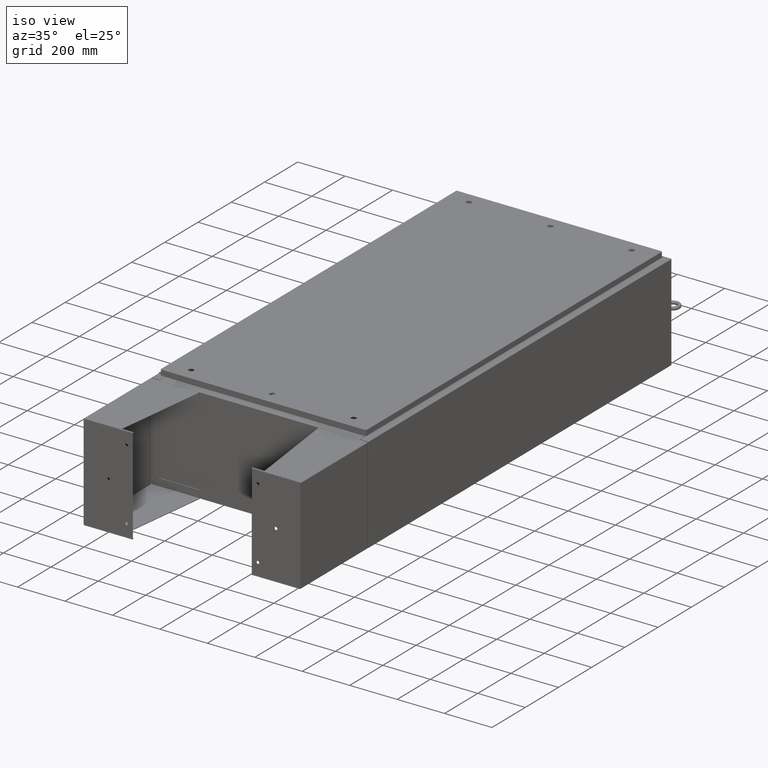
[diagram: clean part render]
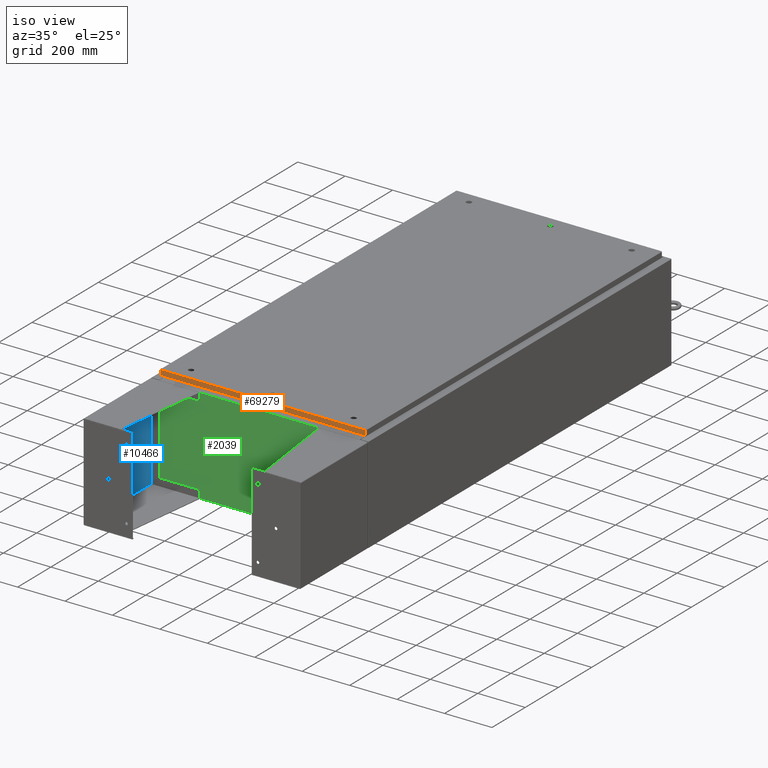
[diagram: same view with three faces highlighted in distinct colors, each labeled with its STEP entity id]
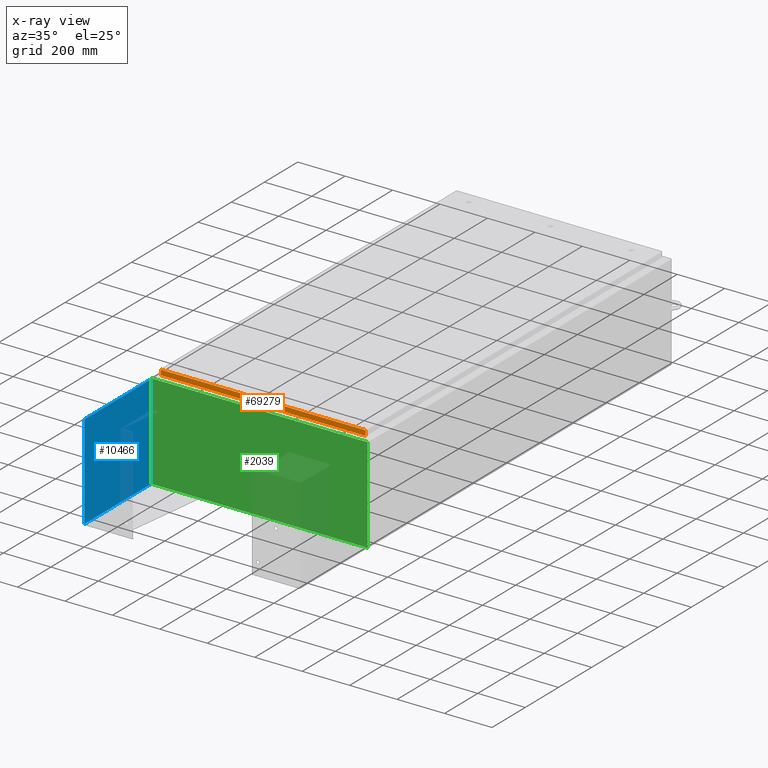
[diagram: x-ray of the same camera — body ghosted, the three highlighted faces saturated]
A machine part, iso view with three faces highlighted in distinct colors.
The next image is the same camera in x-ray (body ghosted, the three faces saturated) — at least one of them is partly hidden behind the body in this view.
Their STEP definitions:

[orange] entity #69279 — the highlighted planar face has unit normal (-0, 1, -0).
#1310 = CARTESIAN_POINT ( 'NONE',  ( 2.274616040905385600E-029, -35.09400000000000800, 1.780063033239673800E-013 ) ) ;
#2481 = CARTESIAN_POINT ( 'NONE',  ( 16.98915786437627100, -35.09400000000001500, -0.9376999999999997600 ) ) ;
#4017 = ORIENTED_EDGE ( 'NONE', *, *, #9594, .F. ) ;
#6320 = VECTOR ( 'NONE', #20692, 39.37007874015748100 ) ;
#9432 = VERTEX_POINT ( 'NONE', #15047 ) ;
#9594 = EDGE_CURVE ( 'NONE', #44220, #39410, #20916, .T. ) ;
#10006 = VERTEX_POINT ( 'NONE', #14444 ) ;
#14444 = CARTESIAN_POINT ( 'NONE',  ( -16.98915786437627100, -35.09400000000001500, -0.9376999999999954300 ) ) ;
#15047 = CARTESIAN_POINT ( 'NONE',  ( -16.98915786437627100, -35.09400000000000800, -0.08769999999999550400 ) ) ;
#15441 = ORIENTED_EDGE ( 'NONE', *, *, #66146, .F. ) ;
#15627 = DIRECTION ( 'NONE',  ( 0.0000000000000000000, -5.064839849203732200E-015, -1.000000000000000000 ) ) ;
#19704 = DIRECTION ( 'NONE',  ( -1.000000000000000000, -8.758115402030106700E-047, 1.279703943630056600E-016 ) ) ;
#19720 = VECTOR ( 'NONE', #63162, 39.37007874015748100 ) ;
#20692 = DIRECTION ( 'NONE',  ( -0.0000000000000000000, -5.064839849203732200E-015, -1.000000000000000000 ) ) ;
#20916 = LINE ( 'NONE', #40171, #6320 ) ;
#23407 = PLANE ( 'NONE',  #33731 ) ;
#25024 = CARTESIAN_POINT ( 'NONE',  ( 17.07799999999999900, -35.09400000000000800, -0.08769999999999550400 ) ) ;
#26471 = FACE_OUTER_BOUND ( 'NONE', #65308, .T. ) ;
#28904 = DIRECTION ( 'NONE',  ( -6.481495528880677800E-031, 1.000000000000000000, -5.064839849203732200E-015 ) ) ;
#29619 = CARTESIAN_POINT ( 'NONE',  ( 16.98915786437627100, -35.09400000000000800, -0.08769999999999550400 ) ) ;
#33731 = AXIS2_PLACEMENT_3D ( 'NONE', #1310, #28904, #67042 ) ;
#36074 = LINE ( 'NONE', #52332, #50514 ) ;
#37832 = ORIENTED_EDGE ( 'NONE', *, *, #42205, .T. ) ;
#39410 = VERTEX_POINT ( 'NONE', #2481 ) ;
#40171 = CARTESIAN_POINT ( 'NONE',  ( 16.98915786437627100, -35.09400000000000800, -0.07469999999999962800 ) ) ;
#40696 = ORIENTED_EDGE ( 'NONE', *, *, #46473, .F. ) ;
#42205 = EDGE_CURVE ( 'NONE', #9432, #10006, #53163, .T. ) ;
#44220 = VERTEX_POINT ( 'NONE', #29619 ) ;
#45290 = LINE ( 'NONE', #25024, #19720 ) ;
#46473 = EDGE_CURVE ( 'NONE', #39410, #10006, #36074, .T. ) ;
#50514 = VECTOR ( 'NONE', #19704, 39.37007874015748100 ) ;
#52332 = CARTESIAN_POINT ( 'NONE',  ( 17.07799999999999900, -35.09400000000001500, -0.9376999999999997600 ) ) ;
#53163 = LINE ( 'NONE', #64506, #64313 ) ;
#63162 = DIRECTION ( 'NONE',  ( 1.000000000000000000, 6.481495528880679500E-031, -3.349804276043092600E-045 ) ) ;
#64313 = VECTOR ( 'NONE', #15627, 39.37007874015748100 ) ;
#64506 = CARTESIAN_POINT ( 'NONE',  ( -16.98915786437627100, -35.09400000000000800, 1.780063033239673800E-013 ) ) ;
#65308 = EDGE_LOOP ( 'NONE', ( #15441, #37832, #40696, #4017 ) ) ;
#66146 = EDGE_CURVE ( 'NONE', #9432, #44220, #45290, .T. ) ;
#67042 = DIRECTION ( 'NONE',  ( 0.0000000000000000000, 5.064839849203732200E-015, 1.000000000000000000 ) ) ;
#69279 = ADVANCED_FACE ( 'NONE', ( #26471 ), #23407, .F. ) ;

[blue] entity #10466 — the highlighted planar face has unit normal (-1, 0, -0).
#4279 = LINE ( 'NONE', #26074, #42755 ) ;
#4929 = EDGE_CURVE ( 'NONE', #9536, #30544, #65235, .T. ) ;
#9300 = CARTESIAN_POINT ( 'NONE',  ( 8.000000000000001800, 8.000000000000001800, 0.0000000000000000000 ) ) ;
#9536 = VERTEX_POINT ( 'NONE', #29211 ) ;
#10466 = ADVANCED_FACE ( 'NONE', ( #53121 ), #41527, .F. ) ;
#12388 = EDGE_CURVE ( 'NONE', #21509, #30544, #69953, .T. ) ;
#15261 = DIRECTION ( 'NONE',  ( 0.0000000000000000000, 0.0000000000000000000, -1.000000000000000000 ) ) ;
#15830 = CARTESIAN_POINT ( 'NONE',  ( -7.999999999999997300, -7.999999999999999100, 0.0000000000000000000 ) ) ;
#18189 = DIRECTION ( 'NONE',  ( -1.000000000000000000, 0.0000000000000000000, -0.0000000000000000000 ) ) ;
#19732 = ORIENTED_EDGE ( 'NONE', *, *, #21017, .F. ) ;
#21017 = EDGE_CURVE ( 'NONE', #60851, #21509, #4279, .T. ) ;
#21143 = ORIENTED_EDGE ( 'NONE', *, *, #12388, .F. ) ;
#21509 = VERTEX_POINT ( 'NONE', #48182 ) ;
#22811 = ORIENTED_EDGE ( 'NONE', *, *, #4929, .T. ) ;
#24205 = DIRECTION ( 'NONE',  ( 1.000000000000000000, 0.0000000000000000000, 0.0000000000000000000 ) ) ;
#24743 = LINE ( 'NONE', #62252, #64849 ) ;
#26074 = CARTESIAN_POINT ( 'NONE',  ( -7.856999999999996700, 7.857000000000001100, 1.365923996832131600E-016 ) ) ;
#29211 = CARTESIAN_POINT ( 'NONE',  ( -7.856999999999997500, -8.000000000000000000, 1.365923996832131600E-016 ) ) ;
#30472 = EDGE_LOOP ( 'NONE', ( #19732, #57736, #22811, #21143 ) ) ;
#30544 = VERTEX_POINT ( 'NONE', #50576 ) ;
#40973 = VECTOR ( 'NONE', #41711, 39.37007874015748100 ) ;
#41527 = PLANE ( 'NONE',  #41916 ) ;
#41711 = DIRECTION ( 'NONE',  ( -0.0000000000000000000, -1.000000000000000000, -0.0000000000000000000 ) ) ;
#41916 = AXIS2_PLACEMENT_3D ( 'NONE', #9300, #15261, #18189 ) ;
#42755 = VECTOR ( 'NONE', #47193, 39.37007874015748100 ) ;
#47193 = DIRECTION ( 'NONE',  ( 1.000000000000000000, 0.0000000000000000000, 0.0000000000000000000 ) ) ;
#48182 = CARTESIAN_POINT ( 'NONE',  ( 7.857000000000001100, 7.857000000000001100, 1.365923996832131600E-016 ) ) ;
#50576 = CARTESIAN_POINT ( 'NONE',  ( 7.857000000000001100, -7.999999999999997300, 1.365923996832131600E-016 ) ) ;
#51137 = EDGE_CURVE ( 'NONE', #9536, #60851, #24743, .T. ) ;
#53121 = FACE_OUTER_BOUND ( 'NONE', #30472, .T. ) ;
#57736 = ORIENTED_EDGE ( 'NONE', *, *, #51137, .F. ) ;
#60727 = CARTESIAN_POINT ( 'NONE',  ( -7.856999999999996700, 7.857000000000001100, 1.365923996832131600E-016 ) ) ;
#60851 = VERTEX_POINT ( 'NONE', #60727 ) ;
#61821 = VECTOR ( 'NONE', #24205, 39.37007874015748100 ) ;
#62252 = CARTESIAN_POINT ( 'NONE',  ( -7.856999999999997500, -7.999999999999999100, 1.365923996832131600E-016 ) ) ;
#64849 = VECTOR ( 'NONE', #67766, 39.37007874015748100 ) ;
#65203 = CARTESIAN_POINT ( 'NONE',  ( 7.857000000000001100, 8.000000000000001800, 1.365923996832131600E-016 ) ) ;
#65235 = LINE ( 'NONE', #15830, #61821 ) ;
#67766 = DIRECTION ( 'NONE',  ( -0.0000000000000000000, 1.000000000000000000, -0.0000000000000000000 ) ) ;
#69953 = LINE ( 'NONE', #65203, #40973 ) ;

[green] entity #2039 — the highlighted planar face has unit normal (-0, 1, -0).
#357 = AXIS2_PLACEMENT_3D ( 'NONE', #69557, #36914, #4103 ) ;
#923 = CIRCLE ( 'NONE', #34056, 0.01867499999999949400 ) ;
#1770 = VERTEX_POINT ( 'NONE', #59631 ) ;
#2039 = ADVANCED_FACE ( 'NONE', ( #43657 ), #55657, .F. ) ;
#2055 = LINE ( 'NONE', #42984, #13289 ) ;
#3124 = CARTESIAN_POINT ( 'NONE',  ( -17.92530000000000000, 0.0000000000000000000, -7.925299999999997300 ) ) ;
#3975 = CARTESIAN_POINT ( 'NONE',  ( 16.65587500000000200, 0.0000000000000000000, 7.874950000000001900 ) ) ;
#4103 = DIRECTION ( 'NONE',  ( 0.0000000000000000000, 0.0000000000000000000, -1.000000000000000000 ) ) ;
#4907 = CARTESIAN_POINT ( 'NONE',  ( 17.92530000000000000, 0.0000000000000000000, 7.925300000000000000 ) ) ;
#6369 = ORIENTED_EDGE ( 'NONE', *, *, #70181, .F. ) ;
#6528 = CARTESIAN_POINT ( 'NONE',  ( 16.63720000000000400, 0.0000000000000000000, 7.874950000000001900 ) ) ;
#7006 = EDGE_CURVE ( 'NONE', #1770, #25965, #923, .T. ) ;
#7124 = VECTOR ( 'NONE', #10097, 39.37007874015748100 ) ;
#7480 = CARTESIAN_POINT ( 'NONE',  ( -16.63720000000000400, -0.0000000000000000000, 7.874950000000001900 ) ) ;
#7501 = CIRCLE ( 'NONE', #357, 0.01867499999999949400 ) ;
#7662 = EDGE_CURVE ( 'NONE', #9552, #10494, #70906, .T. ) ;
#9552 = VERTEX_POINT ( 'NONE', #3124 ) ;
#10063 = VECTOR ( 'NONE', #69550, 39.37007874015748100 ) ;
#10097 = DIRECTION ( 'NONE',  ( 0.0000000000000000000, 0.0000000000000000000, -1.000000000000000000 ) ) ;
#10271 = DIRECTION ( 'NONE',  ( 0.0000000000000000000, 0.0000000000000000000, -1.000000000000000000 ) ) ;
#10303 = VERTEX_POINT ( 'NONE', #62790 ) ;
#10494 = VERTEX_POINT ( 'NONE', #14097 ) ;
#11839 = VECTOR ( 'NONE', #57252, 39.37007874015748100 ) ;
#12726 = VECTOR ( 'NONE', #52649, 39.37007874015748100 ) ;
#12915 = VECTOR ( 'NONE', #68823, 39.37007874015748100 ) ;
#13289 = VECTOR ( 'NONE', #10271, 39.37007874015748100 ) ;
#14045 = ORIENTED_EDGE ( 'NONE', *, *, #56385, .F. ) ;
#14097 = CARTESIAN_POINT ( 'NONE',  ( -17.92530000000000000, 0.0000000000000000000, 7.925300000000001800 ) ) ;
#14448 = VERTEX_POINT ( 'NONE', #54485 ) ;
#14847 = VERTEX_POINT ( 'NONE', #7480 ) ;
#16184 = CARTESIAN_POINT ( 'NONE',  ( -16.67455000000000000, 0.0000000000000000000, 7.874950000000001900 ) ) ;
#16363 = CARTESIAN_POINT ( 'NONE',  ( -16.67455000000000000, 0.0000000000000000000, 7.925300000000001800 ) ) ;
#16424 = VECTOR ( 'NONE', #33766, 39.37007874015748100 ) ;
#17778 = EDGE_CURVE ( 'NONE', #21878, #28549, #2055, .T. ) ;
#19569 = EDGE_CURVE ( 'NONE', #28549, #9552, #61665, .T. ) ;
#21702 = LINE ( 'NONE', #48250, #7124 ) ;
#21878 = VERTEX_POINT ( 'NONE', #4907 ) ;
#23083 = DIRECTION ( 'NONE',  ( 1.000000000000000000, 0.0000000000000000000, -6.096072018129154100E-017 ) ) ;
#23731 = ORIENTED_EDGE ( 'NONE', *, *, #7662, .T. ) ;
#23777 = EDGE_CURVE ( 'NONE', #24268, #21878, #37885, .T. ) ;
#24268 = VERTEX_POINT ( 'NONE', #36154 ) ;
#25164 = DIRECTION ( 'NONE',  ( -8.681145560800387200E-014, 0.0000000000000000000, -1.000000000000000000 ) ) ;
#25320 = DIRECTION ( 'NONE',  ( 0.0000000000000000000, -0.0000000000000000000, -1.000000000000000000 ) ) ;
#25476 = ORIENTED_EDGE ( 'NONE', *, *, #35764, .F. ) ;
#25524 = CARTESIAN_POINT ( 'NONE',  ( -16.67455000000000000, -0.0000000000000000000, 0.0000000000000000000 ) ) ;
#25965 = VERTEX_POINT ( 'NONE', #6528 ) ;
#26321 = ORIENTED_EDGE ( 'NONE', *, *, #52775, .T. ) ;
#27010 = EDGE_LOOP ( 'NONE', ( #14045, #57755, #36631, #37741, #6369, #48565, #25476, #27924, #66762, #67677, #23731, #26321 ) ) ;
#27507 = EDGE_CURVE ( 'NONE', #14847, #51488, #7501, .T. ) ;
#27633 = LINE ( 'NONE', #51567, #54843 ) ;
#27924 = ORIENTED_EDGE ( 'NONE', *, *, #23777, .T. ) ;
#28549 = VERTEX_POINT ( 'NONE', #45784 ) ;
#33766 = DIRECTION ( 'NONE',  ( -1.000000000000000000, -0.0000000000000000000, -0.0000000000000000000 ) ) ;
#34056 = AXIS2_PLACEMENT_3D ( 'NONE', #3975, #37163, #63127 ) ;
#35253 = VECTOR ( 'NONE', #25164, 39.37007874015748100 ) ;
#35666 = CARTESIAN_POINT ( 'NONE',  ( 16.63720000000000400, 0.0000000000000000000, 0.0000000000000000000 ) ) ;
#35764 = EDGE_CURVE ( 'NONE', #24268, #1770, #49659, .T. ) ;
#35903 = DIRECTION ( 'NONE',  ( 0.0000000000000000000, -1.000000000000000000, 0.0000000000000000000 ) ) ;
#36154 = CARTESIAN_POINT ( 'NONE',  ( 16.67455000000000700, 0.0000000000000000000, 7.925300000000000000 ) ) ;
#36631 = ORIENTED_EDGE ( 'NONE', *, *, #55310, .F. ) ;
#36914 = DIRECTION ( 'NONE',  ( -0.0000000000000000000, 1.000000000000000000, -0.0000000000000000000 ) ) ;
#37163 = DIRECTION ( 'NONE',  ( -0.0000000000000000000, 1.000000000000000000, -0.0000000000000000000 ) ) ;
#37450 = LINE ( 'NONE', #58516, #10063 ) ;
#37741 = ORIENTED_EDGE ( 'NONE', *, *, #64819, .T. ) ;
#37885 = LINE ( 'NONE', #50652, #50588 ) ;
#42984 = CARTESIAN_POINT ( 'NONE',  ( 17.92530000000000000, 0.0000000000000000000, 7.925300000000000000 ) ) ;
#43642 = CARTESIAN_POINT ( 'NONE',  ( -17.92530000000000000, 0.0000000000000000000, 7.925300000000001800 ) ) ;
#43657 = FACE_OUTER_BOUND ( 'NONE', #27010, .T. ) ;
#45784 = CARTESIAN_POINT ( 'NONE',  ( 17.92530000000000000, 0.0000000000000000000, -7.925299999999997300 ) ) ;
#46816 = CARTESIAN_POINT ( 'NONE',  ( 16.67454999999931800, -0.0000000000000000000, -1.447541957108381700E-012 ) ) ;
#47279 = CARTESIAN_POINT ( 'NONE',  ( 0.0000000000000000000, 0.0000000000000000000, 0.0000000000000000000 ) ) ;
#48250 = CARTESIAN_POINT ( 'NONE',  ( -16.63720000000000400, -0.0000000000000000000, 0.0000000000000000000 ) ) ;
#48565 = ORIENTED_EDGE ( 'NONE', *, *, #7006, .F. ) ;
#49659 = LINE ( 'NONE', #46816, #35253 ) ;
#50328 = CARTESIAN_POINT ( 'NONE',  ( -17.92530000000000000, 0.0000000000000000000, -7.925299999999997300 ) ) ;
#50588 = VECTOR ( 'NONE', #23083, 39.37007874015748100 ) ;
#50652 = CARTESIAN_POINT ( 'NONE',  ( -17.92530000000000000, 0.0000000000000000000, 7.925300000000001800 ) ) ;
#51488 = VERTEX_POINT ( 'NONE', #16184 ) ;
#51567 = CARTESIAN_POINT ( 'NONE',  ( -16.63720000000000400, -2.356218894535426900E-015, 7.912300000000008100 ) ) ;
#52649 = DIRECTION ( 'NONE',  ( 0.0000000000000000000, 0.0000000000000000000, 1.000000000000000000 ) ) ;
#52775 = EDGE_CURVE ( 'NONE', #10494, #52890, #37450, .T. ) ;
#52890 = VERTEX_POINT ( 'NONE', #16363 ) ;
#53583 = LINE ( 'NONE', #35666, #11839 ) ;
#54485 = CARTESIAN_POINT ( 'NONE',  ( -16.63720000000000400, -2.356218894535426900E-015, 7.912300000000008100 ) ) ;
#54843 = VECTOR ( 'NONE', #57036, 39.37007874015748100 ) ;
#55133 = AXIS2_PLACEMENT_3D ( 'NONE', #47279, #35903, #25320 ) ;
#55310 = EDGE_CURVE ( 'NONE', #14448, #14847, #21702, .T. ) ;
#55657 = PLANE ( 'NONE',  #55133 ) ;
#56167 = LINE ( 'NONE', #25524, #12726 ) ;
#56385 = EDGE_CURVE ( 'NONE', #51488, #52890, #56167, .T. ) ;
#57036 = DIRECTION ( 'NONE',  ( 1.000000000000000000, 0.0000000000000000000, 0.0000000000000000000 ) ) ;
#57252 = DIRECTION ( 'NONE',  ( 0.0000000000000000000, 0.0000000000000000000, 1.000000000000000000 ) ) ;
#57755 = ORIENTED_EDGE ( 'NONE', *, *, #27507, .F. ) ;
#58516 = CARTESIAN_POINT ( 'NONE',  ( -17.92530000000000000, 0.0000000000000000000, 7.925300000000001800 ) ) ;
#59631 = CARTESIAN_POINT ( 'NONE',  ( 16.67455000000000000, 0.0000000000000000000, 7.874950000000001900 ) ) ;
#61665 = LINE ( 'NONE', #50328, #16424 ) ;
#62790 = CARTESIAN_POINT ( 'NONE',  ( 16.63720000000000400, 0.0000000000000000000, 7.912300000000001900 ) ) ;
#63127 = DIRECTION ( 'NONE',  ( 0.0000000000000000000, 0.0000000000000000000, -1.000000000000000000 ) ) ;
#64819 = EDGE_CURVE ( 'NONE', #14448, #10303, #27633, .T. ) ;
#66762 = ORIENTED_EDGE ( 'NONE', *, *, #17778, .T. ) ;
#67677 = ORIENTED_EDGE ( 'NONE', *, *, #19569, .T. ) ;
#68823 = DIRECTION ( 'NONE',  ( -0.0000000000000000000, -0.0000000000000000000, 1.000000000000000000 ) ) ;
#69550 = DIRECTION ( 'NONE',  ( 1.000000000000000000, 0.0000000000000000000, -6.096072018129154100E-017 ) ) ;
#69557 = CARTESIAN_POINT ( 'NONE',  ( -16.65587500000000200, 0.0000000000000000000, 7.874950000000001900 ) ) ;
#70181 = EDGE_CURVE ( 'NONE', #25965, #10303, #53583, .T. ) ;
#70906 = LINE ( 'NONE', #43642, #12915 ) ;